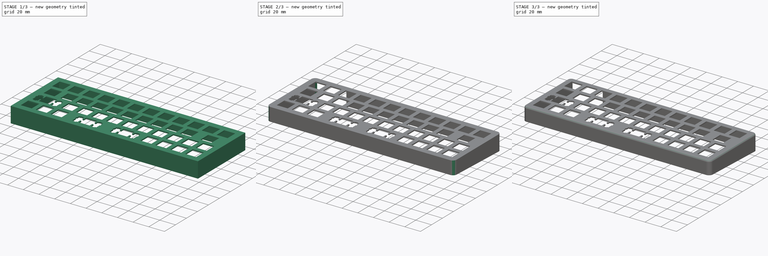
[diagram: build sequence overview — one tinted view per stage of 3, left to right]
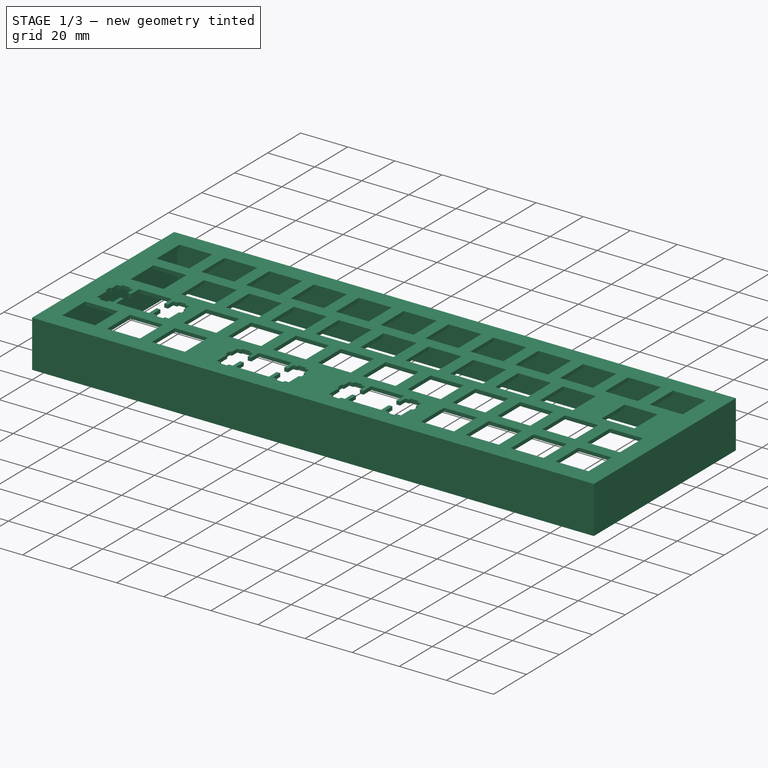
[diagram: stage 1 of 3 — iso view after this stage's code; geometry added in this stage tinted green]
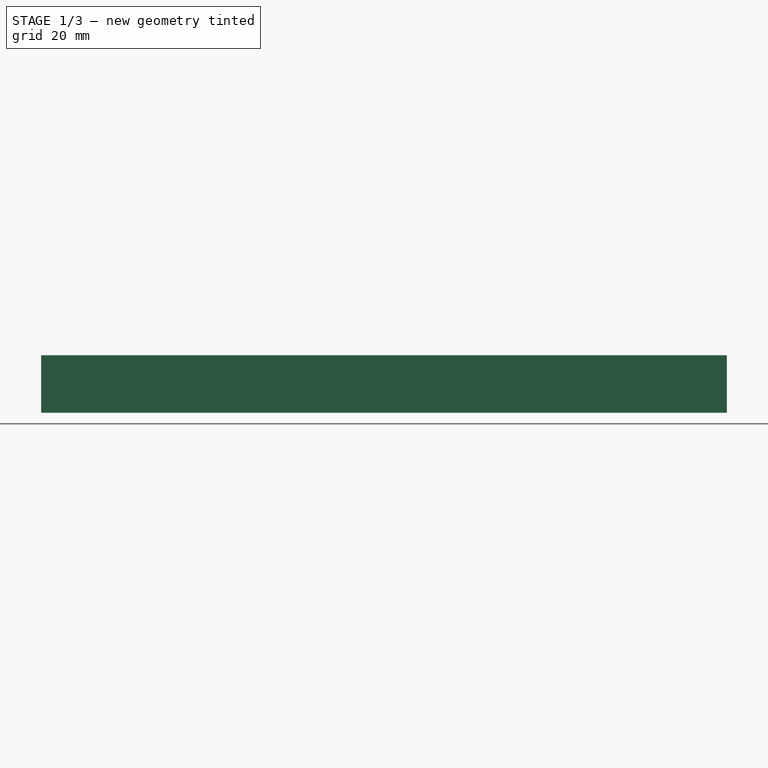
[diagram: stage 1 of 3 — front view after this stage's code; geometry added in this stage tinted green]
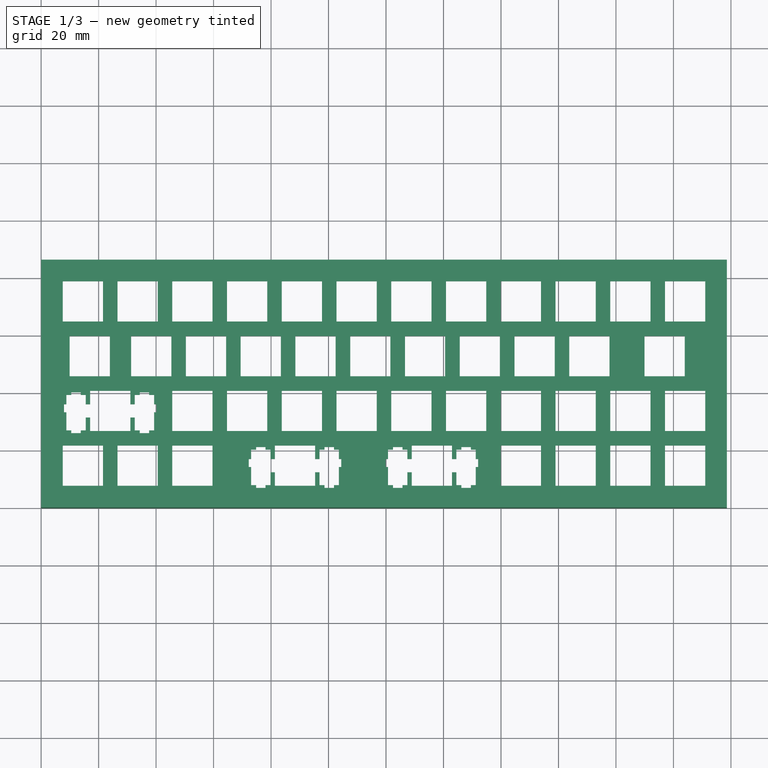
[diagram: stage 1 of 3 — top view after this stage's code; geometry added in this stage tinted green]
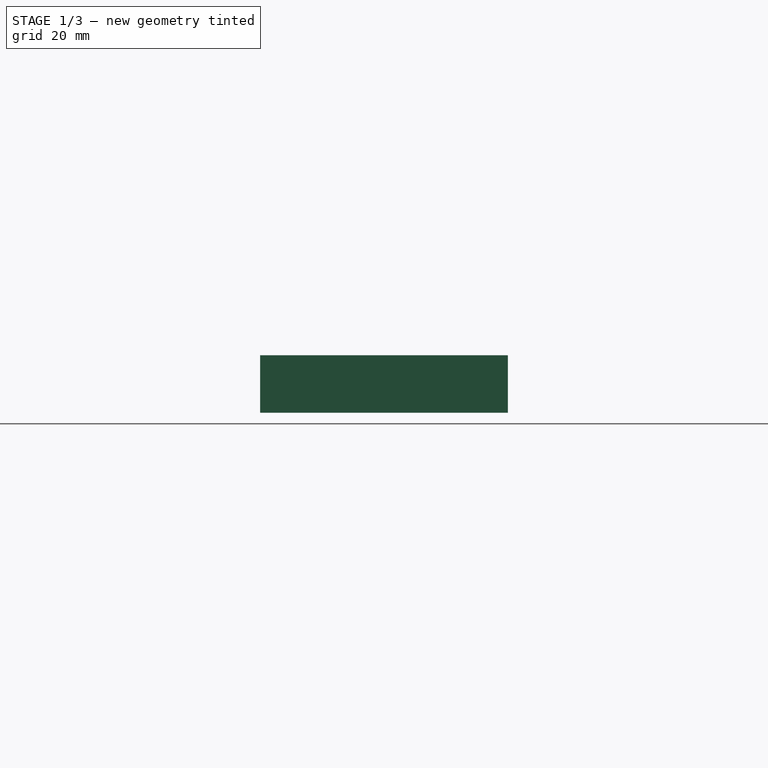
[diagram: stage 1 of 3 — right view after this stage's code; geometry added in this stage tinted green]
FCSTD DOCUMENT  (FreeCAD 0.20R)
Label: case
License: All rights reserved
LicenseURL: http://en.wikipedia.org/wiki/All_rights_reserved
objects: Sketcher::SketchObject×4, PartDesign::Pocket×3, PartDesign::Fillet×3, PartDesign::Pad×1, PartDesign::Body×1
note: 19 computed .brp shape members not serialized (recipe doc carries the construction recipe); baked Part::Feature solids carry a one-line shape summary decoded from their .brp

FEATURE [Sketcher::SketchObject] Sketch
  FullyConstrained = false
  Placement = pos=(0,0,0) rot=(0,0,1;3.14159rad)
  sketch-geometry (296):
    g0: LineSegment StartX=-81.342 StartY=-21.5254 StartZ=0 EndX=-81.342 EndY=-16.8249 EndZ=0
    g1: LineSegment StartX=-81.342 StartY=-16.8249 StartZ=0 EndX=-79.818 EndY=-16.8249 EndZ=0
    g2: LineSegment StartX=-79.818 StartY=-16.8249 StartZ=0 EndX=-79.818 EndY=-20.0551 EndZ=0
    g3: LineSegment StartX=-79.818 StartY=-20.0551 StartZ=0 EndX=-78.0925 EndY=-20.0551 EndZ=0
    g4: LineSegment StartX=-78.0925 StartY=-20.0551 StartZ=0 EndX=-78.0925 EndY=-20.977 EndZ=0
    g5: LineSegment StartX=-78.0925 StartY=-20.977 StartZ=0 EndX=-74.7919 EndY=-20.977 EndZ=0
    g6: LineSegment StartX=-74.7919 StartY=-20.977 StartZ=0 EndX=-74.7919 EndY=-20.0551 EndZ=0
    g7: LineSegment StartX=-74.7919 StartY=-20.0551 StartZ=0 EndX=-73.0669 EndY=-20.0551 EndZ=0
    g8: LineSegment StartX=-73.0669 StartY=-20.0551 StartZ=0 EndX=-73.0669 EndY=-16.8249 EndZ=0
    g9: LineSegment StartX=-73.0669 StartY=-16.8249 StartZ=0 EndX=-72.2428 EndY=-16.8249 EndZ=0
    g10: LineSegment StartX=-72.2428 StartY=-16.8249 StartZ=0 EndX=-72.2428 EndY=-14.0261 EndZ=0
    g11: LineSegment StartX=-72.2428 StartY=-14.0261 StartZ=0 EndX=-73.0669 EndY=-14.0261 EndZ=0
    g12: LineSegment StartX=-73.0669 StartY=-14.0261 StartZ=0 EndX=-73.0669 EndY=-7.75608 EndZ=0
    g13: LineSegment StartX=-73.0669 StartY=-7.75608 StartZ=0 EndX=-74.7919 EndY=-7.75608 EndZ=0
    g14: LineSegment StartX=-74.7919 StartY=-7.75608 StartZ=0 EndX=-74.7919 EndY=-6.77492 EndZ=0
    g15: LineSegment StartX=-74.7919 StartY=-6.77492 StartZ=0 EndX=-78.0925 EndY=-6.77492 EndZ=0
    g16: LineSegment StartX=-78.0925 StartY=-6.77492 StartZ=0 EndX=-78.0925 EndY=-7.75608 EndZ=0
    g17: LineSegment StartX=-78.0925 StartY=-7.75608 StartZ=0 EndX=-79.818 EndY=-7.75608 EndZ=0
    g18: LineSegment StartX=-79.818 StartY=-7.75608 StartZ=0 EndX=-79.818 EndY=-12.225 EndZ=0
    g19: LineSegment StartX=-79.818 StartY=-12.225 StartZ=0 EndX=-81.342 EndY=-12.225 EndZ=0
    g20: LineSegment StartX=-81.342 StartY=-12.225 StartZ=0 EndX=-81.342 EndY=-7.52595 EndZ=0
    g21: LineSegment StartX=-81.342 StartY=-7.52595 StartZ=0 EndX=-95.3427 EndY=-7.52595 EndZ=0
    g22: LineSegment StartX=-95.3427 StartY=-7.52595 StartZ=0 EndX=-95.3427 EndY=-12.225 EndZ=0
    g23: LineSegment StartX=-95.3427 StartY=-12.225 StartZ=0 EndX=-96.867 EndY=-12.225 EndZ=0
    g24: LineSegment StartX=-96.867 StartY=-12.225 StartZ=0 EndX=-96.867 EndY=-7.75608 EndZ=0
    g25: LineSegment StartX=-96.867 StartY=-7.75608 StartZ=0 EndX=-98.5921 EndY=-7.75608 EndZ=0
    g26: LineSegment StartX=-98.5921 StartY=-7.75608 StartZ=0 EndX=-98.5921 EndY=-6.77492 EndZ=0
    g27: LineSegment StartX=-98.5921 StartY=-6.77492 StartZ=0 EndX=-101.893 EndY=-6.77492 EndZ=0
    g28: LineSegment StartX=-101.893 StartY=-6.77492 StartZ=0 EndX=-101.893 EndY=-7.75608 EndZ=0
    g29: LineSegment StartX=-101.893 StartY=-7.75608 StartZ=0 EndX=-103.618 EndY=-7.75608 EndZ=0
    g30: LineSegment StartX=-103.618 StartY=-7.75608 StartZ=0 EndX=-103.618 EndY=-14.0261 EndZ=0
    g31: LineSegment StartX=-103.618 StartY=-14.0261 StartZ=0 EndX=-104.442 EndY=-14.0261 EndZ=0
    g32: LineSegment StartX=-104.442 StartY=-14.0261 StartZ=0 EndX=-104.442 EndY=-16.8249 EndZ=0
    g33: LineSegment StartX=-104.442 StartY=-16.8249 StartZ=0 EndX=-103.618 EndY=-16.8249 EndZ=0
    g34: LineSegment StartX=-103.618 StartY=-16.8249 StartZ=0 EndX=-103.618 EndY=-20.0551 EndZ=0
    g35: LineSegment StartX=-103.618 StartY=-20.0551 StartZ=0 EndX=-101.893 EndY=-20.0551 EndZ=0
    g36: LineSegment StartX=-101.893 StartY=-20.0551 StartZ=0 EndX=-101.893 EndY=-20.977 EndZ=0
    g37: LineSegment StartX=-101.893 StartY=-20.977 StartZ=0 EndX=-98.5921 EndY=-20.977 EndZ=0
    g38: LineSegment StartX=-98.5921 StartY=-20.977 StartZ=0 EndX=-98.5921 EndY=-20.0551 EndZ=0
    g39: LineSegment StartX=-98.5921 StartY=-20.0551 StartZ=0 EndX=-96.867 EndY=-20.0551 EndZ=0
    g40: LineSegment StartX=-96.867 StartY=-20.0551 StartZ=0 EndX=-96.867 EndY=-16.8249 EndZ=0
    g41: LineSegment StartX=-96.867 StartY=-16.8249 StartZ=0 EndX=-95.3427 EndY=-16.8249 EndZ=0
    g42: LineSegment StartX=-95.3427 StartY=-16.8249 StartZ=0 EndX=-95.3427 EndY=-21.5254 EndZ=0
    g43: LineSegment StartX=-95.3427 StartY=-21.5254 StartZ=0 EndX=-81.342 EndY=-21.5254 EndZ=0
    g44: LineSegment StartX=-128.967 StartY=-21.5254 StartZ=0 EndX=-128.967 EndY=-16.8249 EndZ=0
    g45: LineSegment StartX=-128.967 StartY=-16.8249 StartZ=0 EndX=-127.443 EndY=-16.8249 EndZ=0
    g46: LineSegment StartX=-127.443 StartY=-16.8249 StartZ=0 EndX=-127.443 EndY=-20.0551 EndZ=0
    g47: LineSegment StartX=-127.443 StartY=-20.0551 StartZ=0 EndX=-125.718 EndY=-20.0551 EndZ=0
    g48: LineSegment StartX=-125.718 StartY=-20.0551 StartZ=0 EndX=-125.718 EndY=-20.977 EndZ=0
    g49: LineSegment StartX=-125.718 StartY=-20.977 StartZ=0 EndX=-122.417 EndY=-20.977 EndZ=0
    g50: LineSegment StartX=-122.417 StartY=-20.977 StartZ=0 EndX=-122.417 EndY=-20.0551 EndZ=0
    g51: LineSegment StartX=-122.417 StartY=-20.0551 StartZ=0 EndX=-120.692 EndY=-20.0551 EndZ=0
    g52: LineSegment StartX=-120.692 StartY=-20.0551 StartZ=0 EndX=-120.692 EndY=-16.8249 EndZ=0
    g53: LineSegment StartX=-120.692 StartY=-16.8249 StartZ=0 EndX=-119.868 EndY=-16.8249 EndZ=0
    g54: LineSegment StartX=-119.868 StartY=-16.8249 StartZ=0 EndX=-119.868 EndY=-14.0261 EndZ=0
    g55: LineSegment StartX=-119.868 StartY=-14.0261 StartZ=0 EndX=-120.692 EndY=-14.0261 EndZ=0
    g56: LineSegment StartX=-120.692 StartY=-14.0261 StartZ=0 EndX=-120.692 EndY=-7.75608 EndZ=0
    g57: LineSegment StartX=-120.692 StartY=-7.75608 StartZ=0 EndX=-122.417 EndY=-7.75608 EndZ=0
    g58: LineSegment StartX=-122.417 StartY=-7.75608 StartZ=0 EndX=-122.417 EndY=-6.77492 EndZ=0
    g59: LineSegment StartX=-122.417 StartY=-6.77492 StartZ=0 EndX=-125.718 EndY=-6.77492 EndZ=0
    g60: LineSegment StartX=-125.718 StartY=-6.77492 StartZ=0 EndX=-125.718 EndY=-7.75608 EndZ=0
    g61: LineSegment StartX=-125.718 StartY=-7.75608 StartZ=0 EndX=-127.443 EndY=-7.75608 EndZ=0
    g62: LineSegment StartX=-127.443 StartY=-7.75608 StartZ=0 EndX=-127.443 EndY=-12.225 EndZ=0
    g63: LineSegment StartX=-127.443 StartY=-12.225 StartZ=0 EndX=-128.967 EndY=-12.225 EndZ=0
    g64: LineSegment StartX=-128.967 StartY=-12.225 StartZ=0 EndX=-128.967 EndY=-7.52595 EndZ=0
    g65: LineSegment StartX=-128.967 StartY=-7.52595 StartZ=0 EndX=-142.968 EndY=-7.52595 EndZ=0
    g66: LineSegment StartX=-142.968 StartY=-7.52595 StartZ=0 EndX=-142.968 EndY=-12.225 EndZ=0
    g67: LineSegment StartX=-142.968 StartY=-12.225 StartZ=0 EndX=-144.492 EndY=-12.225 EndZ=0
    g68: LineSegment StartX=-144.492 StartY=-12.225 StartZ=0 EndX=-144.492 EndY=-7.75608 EndZ=0
    g69: LineSegment StartX=-144.492 StartY=-7.75608 StartZ=0 EndX=-146.217 EndY=-7.75608 EndZ=0
    g70: LineSegment StartX=-146.217 StartY=-7.75608 StartZ=0 EndX=-146.217 EndY=-6.77492 EndZ=0
    g71: LineSegment StartX=-146.217 StartY=-6.77492 StartZ=0 EndX=-149.518 EndY=-6.77492 EndZ=0
    g72: LineSegment StartX=-149.518 StartY=-6.77492 StartZ=0 EndX=-149.518 EndY=-7.75608 EndZ=0
    g73: LineSegment StartX=-149.518 StartY=-7.75608 StartZ=0 EndX=-151.243 EndY=-7.75608 EndZ=0
    g74: LineSegment StartX=-151.243 StartY=-7.75608 StartZ=0 EndX=-151.243 EndY=-14.0261 EndZ=0
    g75: LineSegment StartX=-151.243 StartY=-14.0261 StartZ=0 EndX=-152.067 EndY=-14.0261 EndZ=0
    g76: LineSegment StartX=-152.067 StartY=-14.0261 StartZ=0 EndX=-152.067 EndY=-16.8249 EndZ=0
    g77: LineSegment StartX=-152.067 StartY=-16.8249 StartZ=0 EndX=-151.243 EndY=-16.8249 EndZ=0
    g78: LineSegment StartX=-151.243 StartY=-16.8249 StartZ=0 EndX=-151.243 EndY=-20.0551 EndZ=0
    g79: LineSegment StartX=-151.243 StartY=-20.0551 StartZ=0 EndX=-149.518 EndY=-20.0551 EndZ=0
    g80: LineSegment StartX=-149.518 StartY=-20.0551 StartZ=0 EndX=-149.518 EndY=-20.977 EndZ=0
    g81: LineSegment StartX=-149.518 StartY=-20.977 StartZ=0 EndX=-146.217 EndY=-20.977 EndZ=0
    g82: LineSegment StartX=-146.217 StartY=-20.977 StartZ=0 EndX=-146.217 EndY=-20.0551 EndZ=0
    g83: LineSegment StartX=-146.217 StartY=-20.0551 StartZ=0 EndX=-144.492 EndY=-20.0551 EndZ=0
    g84: LineSegment StartX=-144.492 StartY=-20.0551 StartZ=0 EndX=-144.492 EndY=-16.8249 EndZ=0
    g85: LineSegment StartX=-144.492 StartY=-16.8249 StartZ=0 EndX=-142.968 EndY=-16.8249 EndZ=0
    g86: LineSegment StartX=-142.968 StartY=-16.8249 StartZ=0 EndX=-142.968 EndY=-21.5254 EndZ=0
    g87: LineSegment StartX=-142.968 StartY=-21.5254 StartZ=0 EndX=-128.967 EndY=-21.5254 EndZ=0
    g88: LineSegment StartX=-7.52457 StartY=-21.5254 StartZ=0 EndX=-21.5241 EndY=-21.5254 EndZ=0
    g89: LineSegment StartX=-21.5241 StartY=-21.5254 StartZ=0 EndX=-21.5241 EndY=-7.52595 EndZ=0
    g90: LineSegment StartX=-21.5241 StartY=-7.52595 StartZ=0 EndX=-7.52457 EndY=-7.52595 EndZ=0
    g91: LineSegment StartX=-7.52457 StartY=-7.52595 StartZ=0 EndX=-7.52457 EndY=-21.5254 EndZ=0
    g92: LineSegment StartX=-26.5746 StartY=-21.5254 StartZ=0 EndX=-40.5739 EndY=-21.5254 EndZ=0
    g93: LineSegment StartX=-40.5739 StartY=-21.5254 StartZ=0 EndX=-40.5739 EndY=-7.52595 EndZ=0
    g94: LineSegment StartX=-40.5739 StartY=-7.52595 StartZ=0 EndX=-26.5746 EndY=-7.52595 EndZ=0
    g95: LineSegment StartX=-26.5746 StartY=-7.52595 StartZ=0 EndX=-26.5746 EndY=-21.5254 EndZ=0
    g96: LineSegment StartX=-45.6246 StartY=-21.5254 StartZ=0 EndX=-59.6239 EndY=-21.5254 EndZ=0
    g97: LineSegment StartX=-59.6239 StartY=-21.5254 StartZ=0 EndX=-59.6239 EndY=-7.52595 EndZ=0
    g98: LineSegment StartX=-59.6239 StartY=-7.52595 StartZ=0 EndX=-45.6246 EndY=-7.52595 EndZ=0
    g99: LineSegment StartX=-45.6246 StartY=-7.52595 StartZ=0 EndX=-45.6246 EndY=-21.5254 EndZ=0
    g100: LineSegment StartX=-159.925 StartY=-21.5254 StartZ=0 EndX=-173.924 EndY=-21.5254 EndZ=0
    g101: LineSegment StartX=-173.924 StartY=-21.5254 StartZ=0 EndX=-173.924 EndY=-7.52595 EndZ=0
    g102: LineSegment StartX=-173.924 StartY=-7.52595 StartZ=0 EndX=-159.925 EndY=-7.52595 EndZ=0
    g103: LineSegment StartX=-159.925 StartY=-7.52595 StartZ=0 EndX=-159.925 EndY=-21.5254 EndZ=0
    g104: LineSegment StartX=-178.975 StartY=-21.5254 StartZ=0 EndX=-192.974 EndY=-21.5254 EndZ=0
    g105: LineSegment StartX=-192.974 StartY=-21.5254 StartZ=0 EndX=-192.974 EndY=-7.52595 EndZ=0
    g106: LineSegment StartX=-192.974 StartY=-7.52595 StartZ=0 EndX=-178.975 EndY=-7.52595 EndZ=0
    g107: LineSegment StartX=-178.975 StartY=-7.52595 StartZ=0 EndX=-178.975 EndY=-21.5254 EndZ=0
    g108: LineSegment StartX=-198.025 StartY=-21.5254 StartZ=0 EndX=-212.024 EndY=-21.5254 EndZ=0
    g109: LineSegment StartX=-212.024 StartY=-21.5254 StartZ=0 EndX=-212.024 EndY=-7.52595 EndZ=0
    g110: LineSegment StartX=-212.024 StartY=-7.52595 StartZ=0 EndX=-198.025 EndY=-7.52595 EndZ=0
    g111: LineSegment StartX=-198.025 StartY=-7.52595 StartZ=0 EndX=-198.025 EndY=-21.5254 EndZ=0
    g112: LineSegment StartX=-217.075 StartY=-21.5254 StartZ=0 EndX=-231.074 EndY=-21.5254 EndZ=0
    g113: LineSegment StartX=-231.074 StartY=-21.5254 StartZ=0 EndX=-231.074 EndY=-7.52595 EndZ=0
    g114: LineSegment StartX=-231.074 StartY=-7.52595 StartZ=0 EndX=-217.075 EndY=-7.52595 EndZ=0
    g115: LineSegment StartX=-217.075 StartY=-7.52595 StartZ=0 EndX=-217.075 EndY=-21.5254 EndZ=0
    g116: LineSegment StartX=-17.0496 StartY=-40.5753 StartZ=0 EndX=-17.0496 EndY=-35.8749 EndZ=0
    g117: LineSegment StartX=-17.0496 StartY=-35.8749 StartZ=0 EndX=-15.5241 EndY=-35.8749 EndZ=0
    g118: LineSegment StartX=-15.5241 StartY=-35.8749 StartZ=0 EndX=-15.5241 EndY=-39.1051 EndZ=0
    g119: LineSegment StartX=-15.5241 StartY=-39.1051 StartZ=0 EndX=-13.7988 EndY=-39.1051 EndZ=0
    g120: LineSegment StartX=-13.7988 StartY=-39.1051 StartZ=0 EndX=-13.7988 EndY=-40.0257 EndZ=0
    g121: LineSegment StartX=-13.7988 StartY=-40.0257 StartZ=0 EndX=-10.4998 EndY=-40.0257 EndZ=0
    g122: LineSegment StartX=-10.4998 StartY=-40.0257 StartZ=0 EndX=-10.4998 EndY=-39.1051 EndZ=0
    g123: LineSegment StartX=-10.4998 StartY=-39.1051 StartZ=0 EndX=-8.77447 EndY=-39.1051 EndZ=0
    g124: LineSegment StartX=-8.77447 StartY=-39.1051 StartZ=0 EndX=-8.77447 EndY=-35.8749 EndZ=0
    g125: LineSegment StartX=-8.77447 StartY=-35.8749 StartZ=0 EndX=-7.94901 EndY=-35.8749 EndZ=0
    g126: LineSegment StartX=-7.94901 StartY=-35.8749 StartZ=0 EndX=-7.94901 EndY=-33.0761 EndZ=0
    g127: LineSegment StartX=-7.94901 StartY=-33.0761 StartZ=0 EndX=-8.77447 EndY=-33.0761 EndZ=0
    g128: LineSegment StartX=-8.77447 StartY=-33.0761 StartZ=0 EndX=-8.77447 EndY=-26.8061 EndZ=0
    g129: LineSegment StartX=-8.77447 StartY=-26.8061 StartZ=0 EndX=-10.4998 EndY=-26.8061 EndZ=0
    g130: LineSegment StartX=-10.4998 StartY=-26.8061 StartZ=0 EndX=-10.4998 EndY=-25.8249 EndZ=0
    g131: LineSegment StartX=-10.4998 StartY=-25.8249 StartZ=0 EndX=-13.7988 EndY=-25.8249 EndZ=0
    g132: LineSegment StartX=-13.7988 StartY=-25.8249 StartZ=0 EndX=-13.7988 EndY=-26.8061 EndZ=0
    g133: LineSegment StartX=-13.7988 StartY=-26.8061 StartZ=0 EndX=-15.5241 EndY=-26.8061 EndZ=0
    g134: LineSegment StartX=-15.5241 StartY=-26.8061 StartZ=0 EndX=-15.5241 EndY=-31.275 EndZ=0
    g135: LineSegment StartX=-15.5241 StartY=-31.275 StartZ=0 EndX=-17.0496 EndY=-31.275 EndZ=0
    g136: LineSegment StartX=-17.0496 StartY=-31.275 StartZ=0 EndX=-17.0496 EndY=-26.5759 EndZ=0
    g137: LineSegment StartX=-17.0496 StartY=-26.5759 StartZ=0 EndX=-31.049 EndY=-26.5759 EndZ=0
    g138: LineSegment StartX=-31.049 StartY=-26.5759 StartZ=0 EndX=-31.049 EndY=-31.275 EndZ=0
    g139: LineSegment StartX=-31.049 StartY=-31.275 StartZ=0 EndX=-32.5745 EndY=-31.275 EndZ=0
    g140: LineSegment StartX=-32.5745 StartY=-31.275 StartZ=0 EndX=-32.5745 EndY=-26.8061 EndZ=0
    g141: LineSegment StartX=-32.5745 StartY=-26.8061 StartZ=0 EndX=-34.2998 EndY=-26.8061 EndZ=0
    g142: LineSegment StartX=-34.2998 StartY=-26.8061 StartZ=0 EndX=-34.2998 EndY=-25.8249 EndZ=0
    g143: LineSegment StartX=-34.2998 StartY=-25.8249 StartZ=0 EndX=-37.5989 EndY=-25.8249 EndZ=0
    g144: LineSegment StartX=-37.5989 StartY=-25.8249 StartZ=0 EndX=-37.5989 EndY=-26.8061 EndZ=0
    g145: LineSegment StartX=-37.5989 StartY=-26.8061 StartZ=0 EndX=-39.3242 EndY=-26.8061 EndZ=0
    g146: LineSegment StartX=-39.3242 StartY=-26.8061 StartZ=0 EndX=-39.3242 EndY=-33.0761 EndZ=0
    g147: LineSegment StartX=-39.3242 StartY=-33.0761 StartZ=0 EndX=-40.1496 EndY=-33.0761 EndZ=0
    g148: LineSegment StartX=-40.1496 StartY=-33.0761 StartZ=0 EndX=-40.1496 EndY=-35.8749 EndZ=0
    g149: LineSegment StartX=-40.1496 StartY=-35.8749 StartZ=0 EndX=-39.3242 EndY=-35.8749 EndZ=0
    g150: LineSegment StartX=-39.3242 StartY=-35.8749 StartZ=0 EndX=-39.3242 EndY=-39.1051 EndZ=0
    g151: LineSegment StartX=-39.3242 StartY=-39.1051 StartZ=0 EndX=-37.5989 EndY=-39.1051 EndZ=0
    g152: LineSegment StartX=-37.5989 StartY=-39.1051 StartZ=0 EndX=-37.5989 EndY=-40.0257 EndZ=0
    g153: LineSegment StartX=-37.5989 StartY=-40.0257 StartZ=0 EndX=-34.2998 EndY=-40.0257 EndZ=0
    g154: LineSegment StartX=-34.2998 StartY=-40.0257 StartZ=0 EndX=-34.2998 EndY=-39.1051 EndZ=0
    g155: LineSegment StartX=-34.2998 StartY=-39.1051 StartZ=0 EndX=-32.5745 EndY=-39.1051 EndZ=0
    g156: LineSegment StartX=-32.5745 StartY=-39.1051 StartZ=0 EndX=-32.5745 EndY=-35.8749 EndZ=0
    g157: LineSegment StartX=-32.5745 StartY=-35.8749 StartZ=0 EndX=-31.049 EndY=-35.8749 EndZ=0
    g158: LineSegment StartX=-31.049 StartY=-35.8749 StartZ=0 EndX=-31.049 EndY=-40.5753 EndZ=0
    g159: LineSegment StartX=-31.049 StartY=-40.5753 StartZ=0 EndX=-17.0496 EndY=-40.5753 EndZ=0
    g160: LineSegment StartX=-45.6246 StartY=-40.5753 StartZ=0 EndX=-59.6239 EndY=-40.5753 EndZ=0
    g161: LineSegment StartX=-59.6239 StartY=-40.5753 StartZ=0 EndX=-59.6239 EndY=-26.5759 EndZ=0
    g162: LineSegment StartX=-59.6239 StartY=-26.5759 StartZ=0 EndX=-45.6246 EndY=-26.5759 EndZ=0
    g163: LineSegment StartX=-45.6246 StartY=-26.5759 StartZ=0 EndX=-45.6246 EndY=-40.5753 EndZ=0
    g164: LineSegment StartX=-64.6746 StartY=-40.5753 StartZ=0 EndX=-78.6739 EndY=-40.5753 EndZ=0
    g165: LineSegment StartX=-78.6739 StartY=-40.5753 StartZ=0 EndX=-78.6739 EndY=-26.5759 EndZ=0
    g166: LineSegment StartX=-78.6739 StartY=-26.5759 StartZ=0 EndX=-64.6746 EndY=-26.5759 EndZ=0
    g167: LineSegment StartX=-64.6746 StartY=-26.5759 StartZ=0 EndX=-64.6746 EndY=-40.5753 EndZ=0
    g168: LineSegment StartX=-83.7246 StartY=-40.5753 StartZ=0 EndX=-97.7239 EndY=-40.5753 EndZ=0
    g169: LineSegment StartX=-97.7239 StartY=-40.5753 StartZ=0 EndX=-97.7239 EndY=-26.5759 EndZ=0
    g170: LineSegment StartX=-97.7239 StartY=-26.5759 StartZ=0 EndX=-83.7246 EndY=-26.5759 EndZ=0
    g171: LineSegment StartX=-83.7246 StartY=-26.5759 StartZ=0 EndX=-83.7246 EndY=-40.5753 EndZ=0
    g172: LineSegment StartX=-102.773 StartY=-40.5753 StartZ=0 EndX=-116.774 EndY=-40.5753 EndZ=0
    g173: LineSegment StartX=-116.774 StartY=-40.5753 StartZ=0 EndX=-116.774 EndY=-26.5759 EndZ=0
    g174: LineSegment StartX=-116.774 StartY=-26.5759 StartZ=0 EndX=-102.773 EndY=-26.5759 EndZ=0
    g175: LineSegment StartX=-102.773 StartY=-26.5759 StartZ=0 EndX=-102.773 EndY=-40.5753 EndZ=0
    g176: LineSegment StartX=-121.823 StartY=-40.5753 StartZ=0 EndX=-135.824 EndY=-40.5753 EndZ=0
    g177: LineSegment StartX=-135.824 StartY=-40.5753 StartZ=0 EndX=-135.824 EndY=-26.5759 EndZ=0
    g178: LineSegment StartX=-135.824 StartY=-26.5759 StartZ=0 EndX=-121.823 EndY=-26.5759 EndZ=0
    g179: LineSegment StartX=-121.823 StartY=-26.5759 StartZ=0 EndX=-121.823 EndY=-40.5753 EndZ=0
    g180: LineSegment StartX=-140.875 StartY=-40.5753 StartZ=0 EndX=-154.874 EndY=-40.5753 EndZ=0
    g181: LineSegment StartX=-154.874 StartY=-40.5753 StartZ=0 EndX=-154.874 EndY=-26.5759 EndZ=0
    g182: LineSegment StartX=-154.874 StartY=-26.5759 StartZ=0 EndX=-140.875 EndY=-26.5759 EndZ=0
    g183: LineSegment StartX=-140.875 StartY=-26.5759 StartZ=0 EndX=-140.875 EndY=-40.5753 EndZ=0
    g184: LineSegment StartX=-159.925 StartY=-40.5753 StartZ=0 EndX=-173.924 EndY=-40.5753 EndZ=0
    g185: LineSegment StartX=-173.924 StartY=-40.5753 StartZ=0 EndX=-173.924 EndY=-26.5759 EndZ=0
    g186: LineSegment StartX=-173.924 StartY=-26.5759 StartZ=0 EndX=-159.925 EndY=-26.5759 EndZ=0
    g187: LineSegment StartX=-159.925 StartY=-26.5759 StartZ=0 EndX=-159.925 EndY=-40.5753 EndZ=0
    g188: LineSegment StartX=-178.975 StartY=-40.5753 StartZ=0 EndX=-192.974 EndY=-40.5753 EndZ=0
    g189: LineSegment StartX=-192.974 StartY=-40.5753 StartZ=0 EndX=-192.974 EndY=-26.5759 EndZ=0
    g190: LineSegment StartX=-192.974 StartY=-26.5759 StartZ=0 EndX=-178.975 EndY=-26.5759 EndZ=0
    g191: LineSegment StartX=-178.975 StartY=-26.5759 StartZ=0 EndX=-178.975 EndY=-40.5753 EndZ=0
    g192: LineSegment StartX=-198.025 StartY=-40.5753 StartZ=0 EndX=-212.024 EndY=-40.5753 EndZ=0
    g193: LineSegment StartX=-212.024 StartY=-40.5753 StartZ=0 EndX=-212.024 EndY=-26.5759 EndZ=0
    g194: LineSegment StartX=-212.024 StartY=-26.5759 StartZ=0 EndX=-198.025 EndY=-26.5759 EndZ=0
    g195: LineSegment StartX=-198.025 StartY=-26.5759 StartZ=0 EndX=-198.025 EndY=-40.5753 EndZ=0
    g196: LineSegment StartX=-217.075 StartY=-40.5753 StartZ=0 EndX=-231.074 EndY=-40.5753 EndZ=0
    g197: LineSegment StartX=-231.074 StartY=-40.5753 StartZ=0 EndX=-231.074 EndY=-26.5759 EndZ=0
    g198: LineSegment StartX=-231.074 StartY=-26.5759 StartZ=0 EndX=-217.075 EndY=-26.5759 EndZ=0
    g199: LineSegment StartX=-217.075 StartY=-26.5759 StartZ=0 EndX=-217.075 EndY=-40.5753 EndZ=0
    g200: LineSegment StartX=-9.90583 StartY=-59.6254 StartZ=0 EndX=-23.9053 EndY=-59.6254 EndZ=0
    g201: LineSegment StartX=-23.9053 StartY=-59.6254 StartZ=0 EndX=-23.9053 EndY=-45.6261 EndZ=0
    g202: LineSegment StartX=-23.9053 StartY=-45.6261 StartZ=0 EndX=-9.90583 EndY=-45.6261 EndZ=0
    g203: LineSegment StartX=-9.90583 StartY=-45.6261 StartZ=0 EndX=-9.90583 EndY=-59.6254 EndZ=0
    g204: LineSegment StartX=-31.3371 StartY=-59.6254 StartZ=0 EndX=-45.3364 EndY=-59.6254 EndZ=0
    g205: LineSegment StartX=-45.3364 StartY=-59.6254 StartZ=0 EndX=-45.3364 EndY=-45.6261 EndZ=0
    g206: LineSegment StartX=-45.3364 StartY=-45.6261 StartZ=0 EndX=-31.3371 EndY=-45.6261 EndZ=0
    g207: LineSegment StartX=-31.3371 StartY=-45.6261 StartZ=0 EndX=-31.3371 EndY=-59.6254 EndZ=0
    g208: LineSegment StartX=-50.3871 StartY=-59.6254 StartZ=0 EndX=-64.3864 EndY=-59.6254 EndZ=0
    g209: LineSegment StartX=-64.3864 StartY=-59.6254 StartZ=0 EndX=-64.3864 EndY=-45.6261 EndZ=0
    g210: LineSegment StartX=-64.3864 StartY=-45.6261 StartZ=0 EndX=-50.3871 EndY=-45.6261 EndZ=0
    g211: LineSegment StartX=-50.3871 StartY=-45.6261 StartZ=0 EndX=-50.3871 EndY=-59.6254 EndZ=0
    g212: LineSegment StartX=-69.4371 StartY=-59.6254 StartZ=0 EndX=-83.4364 EndY=-59.6254 EndZ=0
    g213: LineSegment StartX=-83.4364 StartY=-59.6254 StartZ=0 EndX=-83.4364 EndY=-45.6261 EndZ=0
    g214: LineSegment StartX=-83.4364 StartY=-45.6261 StartZ=0 EndX=-69.4371 EndY=-45.6261 EndZ=0
    g215: LineSegment StartX=-69.4371 StartY=-45.6261 StartZ=0 EndX=-69.4371 EndY=-59.6254 EndZ=0
    g216: LineSegment StartX=-88.4871 StartY=-59.6254 StartZ=0 EndX=-102.486 EndY=-59.6254 EndZ=0
    g217: LineSegment StartX=-102.486 StartY=-59.6254 StartZ=0 EndX=-102.486 EndY=-45.6261 EndZ=0
    g218: LineSegment StartX=-102.486 StartY=-45.6261 StartZ=0 EndX=-88.4871 EndY=-45.6261 EndZ=0
    g219: LineSegment StartX=-88.4871 StartY=-45.6261 StartZ=0 EndX=-88.4871 EndY=-59.6254 EndZ=0
    g220: LineSegment StartX=-107.537 StartY=-59.6254 StartZ=0 EndX=-121.537 EndY=-59.6254 EndZ=0
    g221: LineSegment StartX=-121.537 StartY=-59.6254 StartZ=0 EndX=-121.537 EndY=-45.6261 EndZ=0
    g222: LineSegment StartX=-121.537 StartY=-45.6261 StartZ=0 EndX=-107.537 EndY=-45.6261 EndZ=0
    g223: LineSegment StartX=-107.537 StartY=-45.6261 StartZ=0 EndX=-107.537 EndY=-59.6254 EndZ=0
    g224: LineSegment StartX=-126.587 StartY=-59.6254 StartZ=0 EndX=-140.587 EndY=-59.6254 EndZ=0
    g225: LineSegment StartX=-140.587 StartY=-59.6254 StartZ=0 EndX=-140.587 EndY=-45.6261 EndZ=0
    g226: LineSegment StartX=-140.587 StartY=-45.6261 StartZ=0 EndX=-126.587 EndY=-45.6261 EndZ=0
    g227: LineSegment StartX=-126.587 StartY=-45.6261 StartZ=0 EndX=-126.587 EndY=-59.6254 EndZ=0
    g228: LineSegment StartX=-145.637 StartY=-59.6254 StartZ=0 EndX=-159.637 EndY=-59.6254 EndZ=0
    g229: LineSegment StartX=-159.637 StartY=-59.6254 StartZ=0 EndX=-159.637 EndY=-45.6261 EndZ=0
    g230: LineSegment StartX=-159.637 StartY=-45.6261 StartZ=0 EndX=-145.637 EndY=-45.6261 EndZ=0
    g231: LineSegment StartX=-145.637 StartY=-45.6261 StartZ=0 EndX=-145.637 EndY=-59.6254 EndZ=0
    g232: LineSegment StartX=-164.687 StartY=-59.6254 StartZ=0 EndX=-178.687 EndY=-59.6254 EndZ=0
    g233: LineSegment StartX=-178.687 StartY=-59.6254 StartZ=0 EndX=-178.687 EndY=-45.6261 EndZ=0
    g234: LineSegment StartX=-178.687 StartY=-45.6261 StartZ=0 EndX=-164.687 EndY=-45.6261 EndZ=0
    g235: LineSegment StartX=-164.687 StartY=-45.6261 StartZ=0 EndX=-164.687 EndY=-59.6254 EndZ=0
    g236: LineSegment StartX=-183.737 StartY=-59.6254 StartZ=0 EndX=-197.737 EndY=-59.6254 EndZ=0
    g237: LineSegment StartX=-197.737 StartY=-59.6254 StartZ=0 EndX=-197.737 EndY=-45.6261 EndZ=0
    g238: LineSegment StartX=-197.737 StartY=-45.6261 StartZ=0 EndX=-183.737 EndY=-45.6261 EndZ=0
    g239: LineSegment StartX=-183.737 StartY=-45.6261 StartZ=0 EndX=-183.737 EndY=-59.6254 EndZ=0
    g240: LineSegment StartX=-209.931 StartY=-59.6254 StartZ=0 EndX=-223.93 EndY=-59.6254 EndZ=0
    g241: LineSegment StartX=-223.93 StartY=-59.6254 StartZ=0 EndX=-223.93 EndY=-45.6261 EndZ=0
    g242: LineSegment StartX=-223.93 StartY=-45.6261 StartZ=0 EndX=-209.931 EndY=-45.6261 EndZ=0
    g243: LineSegment StartX=-209.931 StartY=-45.6261 StartZ=0 EndX=-209.931 EndY=-59.6254 EndZ=0
    g244: LineSegment StartX=-7.52457 StartY=-78.6754 StartZ=0 EndX=-21.5241 EndY=-78.6754 EndZ=0
    g245: LineSegment StartX=-21.5241 StartY=-78.6754 StartZ=0 EndX=-21.5241 EndY=-64.6761 EndZ=0
    g246: LineSegment StartX=-21.5241 StartY=-64.6761 StartZ=0 EndX=-7.52457 EndY=-64.6761 EndZ=0
    g247: LineSegment StartX=-7.52457 StartY=-64.6761 StartZ=0 EndX=-7.52457 EndY=-78.6754 EndZ=0
    g248: LineSegment StartX=-26.5746 StartY=-78.6754 StartZ=0 EndX=-40.5739 EndY=-78.6754 EndZ=0
    g249: LineSegment StartX=-40.5739 StartY=-78.6754 StartZ=0 EndX=-40.5739 EndY=-64.6761 EndZ=0
    g250: LineSegment StartX=-40.5739 StartY=-64.6761 StartZ=0 EndX=-26.5746 EndY=-64.6761 EndZ=0
    g251: LineSegment StartX=-26.5746 StartY=-64.6761 StartZ=0 EndX=-26.5746 EndY=-78.6754 EndZ=0
    g252: LineSegment StartX=-45.6246 StartY=-78.6754 StartZ=0 EndX=-59.6239 EndY=-78.6754 EndZ=0
    g253: LineSegment StartX=-59.6239 StartY=-78.6754 StartZ=0 EndX=-59.6239 EndY=-64.6761 EndZ=0
    g254: LineSegment StartX=-59.6239 StartY=-64.6761 StartZ=0 EndX=-45.6246 EndY=-64.6761 EndZ=0
    g255: LineSegment StartX=-45.6246 StartY=-64.6761 StartZ=0 EndX=-45.6246 EndY=-78.6754 EndZ=0
    g256: LineSegment StartX=-64.6746 StartY=-78.6754 StartZ=0 EndX=-78.6739 EndY=-78.6754 EndZ=0
    g257: LineSegment StartX=-78.6739 StartY=-78.6754 StartZ=0 EndX=-78.6739 EndY=-64.6761 EndZ=0
    g258: LineSegment StartX=-78.6739 StartY=-64.6761 StartZ=0 EndX=-64.6746 EndY=-64.6761 EndZ=0
    g259: LineSegment StartX=-64.6746 StartY=-64.6761 StartZ=0 EndX=-64.6746 EndY=-78.6754 EndZ=0
    g260: LineSegment StartX=-83.7246 StartY=-78.6754 StartZ=0 EndX=-97.7239 EndY=-78.6754 EndZ=0
    g261: LineSegment StartX=-97.7239 StartY=-78.6754 StartZ=0 EndX=-97.7239 EndY=-64.6761 EndZ=0
    g262: LineSegment StartX=-97.7239 StartY=-64.6761 StartZ=0 EndX=-83.7246 EndY=-64.6761 EndZ=0
    g263: LineSegment StartX=-83.7246 StartY=-64.6761 StartZ=0 EndX=-83.7246 EndY=-78.6754 EndZ=0
    g264: LineSegment StartX=-102.773 StartY=-78.6754 StartZ=0 EndX=-116.774 EndY=-78.6754 EndZ=0
    g265: LineSegment StartX=-116.774 StartY=-78.6754 StartZ=0 EndX=-116.774 EndY=-64.6761 EndZ=0
    g266: LineSegment StartX=-116.774 StartY=-64.6761 StartZ=0 EndX=-102.773 EndY=-64.6761 EndZ=0
    g267: LineSegment StartX=-102.773 StartY=-64.6761 StartZ=0 EndX=-102.773 EndY=-78.6754 EndZ=0
    g268: LineSegment StartX=-121.823 StartY=-78.6754 StartZ=0 EndX=-135.824 EndY=-78.6754 EndZ=0
    g269: LineSegment StartX=-135.824 StartY=-78.6754 StartZ=0 EndX=-135.824 EndY=-64.6761 EndZ=0
    g270: LineSegment StartX=-135.824 StartY=-64.6761 StartZ=0 EndX=-121.823 EndY=-64.6761 EndZ=0
    g271: LineSegment StartX=-121.823 StartY=-64.6761 StartZ=0 EndX=-121.823 EndY=-78.6754 EndZ=0
    g272: LineSegment StartX=-140.875 StartY=-78.6754 StartZ=0 EndX=-154.874 EndY=-78.6754 EndZ=0
    g273: LineSegment StartX=-154.874 StartY=-78.6754 StartZ=0 EndX=-154.874 EndY=-64.6761 EndZ=0
    g274: LineSegment StartX=-154.874 StartY=-64.6761 StartZ=0 EndX=-140.875 EndY=-64.6761 EndZ=0
    g275: LineSegment StartX=-140.875 StartY=-64.6761 StartZ=0 EndX=-140.875 EndY=-78.6754 EndZ=0
    g276: LineSegment StartX=-159.925 StartY=-78.6754 StartZ=0 EndX=-173.924 EndY=-78.6754 EndZ=0
    g277: LineSegment StartX=-173.924 StartY=-78.6754 StartZ=0 EndX=-173.924 EndY=-64.6761 EndZ=0
    g278: LineSegment StartX=-173.924 StartY=-64.6761 StartZ=0 EndX=-159.925 EndY=-64.6761 EndZ=0
    g279: LineSegment StartX=-159.925 StartY=-64.6761 StartZ=0 EndX=-159.925 EndY=-78.6754 EndZ=0
    g280: LineSegment StartX=-178.975 StartY=-78.6754 StartZ=0 EndX=-192.974 EndY=-78.6754 EndZ=0
    g281: LineSegment StartX=-192.974 StartY=-78.6754 StartZ=0 EndX=-192.974 EndY=-64.6761 EndZ=0
    g282: LineSegment StartX=-192.974 StartY=-64.6761 StartZ=0 EndX=-178.975 EndY=-64.6761 EndZ=0
    g283: LineSegment StartX=-178.975 StartY=-64.6761 StartZ=0 EndX=-178.975 EndY=-78.6754 EndZ=0
    g284: LineSegment StartX=-198.025 StartY=-78.6754 StartZ=0 EndX=-212.024 EndY=-78.6754 EndZ=0
    g285: LineSegment StartX=-212.024 StartY=-78.6754 StartZ=0 EndX=-212.024 EndY=-64.6761 EndZ=0
    g286: LineSegment StartX=-212.024 StartY=-64.6761 StartZ=0 EndX=-198.025 EndY=-64.6761 EndZ=0
    g287: LineSegment StartX=-198.025 StartY=-64.6761 StartZ=0 EndX=-198.025 EndY=-78.6754 EndZ=0
    g288: LineSegment StartX=-217.075 StartY=-78.6754 StartZ=0 EndX=-231.074 EndY=-78.6754 EndZ=0
    g289: LineSegment StartX=-231.074 StartY=-78.6754 StartZ=0 EndX=-231.074 EndY=-64.6761 EndZ=0
    g290: LineSegment StartX=-231.074 StartY=-64.6761 StartZ=0 EndX=-217.075 EndY=-64.6761 EndZ=0
    g291: LineSegment StartX=-217.075 StartY=-64.6761 StartZ=0 EndX=-217.075 EndY=-78.6754 EndZ=0
    g292: LineSegment StartX=-238.6 StartY=-86.1998 StartZ=0 EndX=-238.6 EndY=2.84e-14 EndZ=0
    g293: LineSegment StartX=-1.06e-14 StartY=-86.1998 StartZ=0 EndX=-238.6 EndY=-86.1998 EndZ=0
    g294: LineSegment StartX=0 StartY=0 StartZ=0 EndX=-1.06e-14 EndY=-86.1998 EndZ=0
    g295: LineSegment StartX=-238.6 StartY=2.84e-14 StartZ=0 EndX=0 EndY=0 EndZ=0
  constraints (296):
    c: Coincident(g292,g293)
    c: Coincident(g292,g295)
    c: Coincident(g288,g289)
    c: Coincident(g289,g290)
    c: Coincident(g196,g197)
    c: Coincident(g197,g198)
    c: Coincident(g112,g113)
    c: Coincident(g113,g114)
    c: Coincident(g240,g241)
    c: Coincident(g241,g242)
    c: Coincident(g288,g291)
    c: Coincident(g290,g291)
    c: Coincident(g196,g199)
    c: Coincident(g198,g199)
    c: Coincident(g112,g115)
    c: Coincident(g114,g115)
    c: Coincident(g284,g285)
    c: Coincident(g285,g286)
    c: Coincident(g192,g193)
    c: Coincident(g193,g194)
    c: Coincident(g108,g109)
    c: Coincident(g109,g110)
    c: Coincident(g240,g243)
    c: Coincident(g242,g243)
    c: Coincident(g284,g287)
    c: Coincident(g286,g287)
    c: Coincident(g192,g195)
    c: Coincident(g194,g195)
    c: Coincident(g108,g111)
    c: Coincident(g110,g111)
    c: Coincident(g236,g237)
    c: Coincident(g237,g238)
    c: Coincident(g280,g281)
    c: Coincident(g281,g282)
    c: Coincident(g188,g189)
    c: Coincident(g189,g190)
    c: Coincident(g104,g105)
    c: Coincident(g105,g106)
    c: Coincident(g236,g239)
    c: Coincident(g238,g239)
    c: Coincident(g280,g283)
    c: Coincident(g282,g283)
    c: Coincident(g188,g191)
    c: Coincident(g190,g191)
    c: Coincident(g104,g107)
    c: Coincident(g106,g107)
    c: Coincident(g232,g233)
    c: Coincident(g233,g234)
    c: Coincident(g276,g277)
    c: Coincident(g277,g278)
    c: Coincident(g184,g185)
    c: Coincident(g185,g186)
    c: Coincident(g100,g101)
    c: Coincident(g101,g102)
    c: Coincident(g232,g235)
    c: Coincident(g234,g235)
    c: Coincident(g276,g279)
    c: Coincident(g278,g279)
    c: Coincident(g184,g187)
    c: Coincident(g186,g187)
    c: Coincident(g100,g103)
    c: Coincident(g102,g103)
    c: Coincident(g228,g229)
    c: Coincident(g229,g230)
    c: Coincident(g272,g273)
    c: Coincident(g273,g274)
    c: Coincident(g180,g181)
    c: Coincident(g181,g182)
    c: Coincident(g76,g77)
    c: Coincident(g75,g76)
    c: Coincident(g78,g79)
    c: Coincident(g77,g78)
    c: Coincident(g74,g75)
    c: Coincident(g73,g74)
    c: Coincident(g80,g81)
    c: Coincident(g79,g80)
    c: Coincident(g72,g73)
    c: Coincident(g71,g72)
    c: Coincident(g81,g82)
    c: Coincident(g82,g83)
    c: Coincident(g69,g70)
    c: Coincident(g70,g71)
    c: Coincident(g228,g231)
    c: Coincident(g230,g231)
    c: Coincident(g83,g84)
    c: Coincident(g84,g85)
    c: Coincident(g67,g68)
    c: Coincident(g68,g69)
    c: Coincident(g86,g87)
    c: Coincident(g85,g86)
    c: Coincident(g66,g67)
    c: Coincident(g65,g66)
    c: Coincident(g272,g275)
    c: Coincident(g274,g275)
    c: Coincident(g180,g183)
    c: Coincident(g182,g183)
    c: Coincident(g224,g225)
    c: Coincident(g225,g226)
    c: Coincident(g268,g269)
    c: Coincident(g269,g270)
    c: Coincident(g176,g177)
    c: Coincident(g177,g178)
    c: Coincident(g44,g87)
    c: Coincident(g44,g45)
    c: Coincident(g63,g64)
    c: Coincident(g64,g65)
    c: Coincident(g46,g47)
    c: Coincident(g45,g46)
    c: Coincident(g62,g63)
    c: Coincident(g61,g62)
    c: Coincident(g224,g227)
    c: Coincident(g226,g227)
    c: Coincident(g48,g49)
    c: Coincident(g47,g48)
    c: Coincident(g60,g61)
    c: Coincident(g59,g60)
    c: Coincident(g49,g50)
    c: Coincident(g50,g51)
    c: Coincident(g57,g58)
    c: Coincident(g58,g59)
    c: Coincident(g268,g271)
    c: Coincident(g270,g271)
    c: Coincident(g176,g179)
    c: Coincident(g178,g179)
    c: Coincident(g220,g221)
    c: Coincident(g221,g222)
    c: Coincident(g51,g52)
    c: Coincident(g52,g53)
    c: Coincident(g55,g56)
    c: Coincident(g56,g57)
    c: Coincident(g53,g54)
    c: Coincident(g54,g55)
    c: Coincident(g264,g265)
    c: Coincident(g265,g266)
    c: Coincident(g172,g173)
    c: Coincident(g173,g174)
    c: Coincident(g220,g223)
    c: Coincident(g222,g223)
    c: Coincident(g32,g33)
    c: Coincident(g31,g32)
    c: Coincident(g34,g35)
    c: Coincident(g33,g34)
    c: Coincident(g30,g31)
    c: Coincident(g29,g30)
    c: Coincident(g264,g267)
    c: Coincident(g266,g267)
    c: Coincident(g172,g175)
    c: Coincident(g174,g175)
    c: Coincident(g216,g217)
    c: Coincident(g217,g218)
    c: Coincident(g36,g37)
    c: Coincident(g35,g36)
    c: Coincident(g28,g29)
    c: Coincident(g27,g28)
    c: Coincident(g37,g38)
    c: Coincident(g38,g39)
    c: Coincident(g25,g26)
    c: Coincident(g26,g27)
    c: Coincident(g260,g261)
    c: Coincident(g261,g262)
    c: Coincident(g168,g169)
    c: Coincident(g169,g170)
    c: Coincident(g39,g40)
    c: Coincident(g40,g41)
    c: Coincident(g23,g24)
    c: Coincident(g24,g25)
    c: Coincident(g42,g43)
    c: Coincident(g41,g42)
    c: Coincident(g22,g23)
    c: Coincident(g21,g22)
    c: Coincident(g216,g219)
    c: Coincident(g218,g219)
    c: Coincident(g260,g263)
    c: Coincident(g262,g263)
    c: Coincident(g168,g171)
    c: Coincident(g170,g171)
    c: Coincident(g212,g213)
    c: Coincident(g213,g214)
    c: Coincident(g0,g43)
    c: Coincident(g0,g1)
    c: Coincident(g19,g20)
    c: Coincident(g20,g21)
    c: Coincident(g2,g3)
    c: Coincident(g1,g2)
    c: Coincident(g18,g19)
    c: Coincident(g17,g18)
    c: Coincident(g256,g257)
    c: Coincident(g257,g258)
    c: Coincident(g164,g165)
    c: Coincident(g165,g166)
    c: Coincident(g4,g5)
    c: Coincident(g3,g4)
    c: Coincident(g16,g17)
    c: Coincident(g15,g16)
    c: Coincident(g5,g6)
    c: Coincident(g6,g7)
    c: Coincident(g13,g14)
    c: Coincident(g14,g15)
    c: Coincident(g7,g8)
    c: Coincident(g8,g9)
    c: Coincident(g11,g12)
    c: Coincident(g12,g13)
    c: Coincident(g9,g10)
    c: Coincident(g10,g11)
    c: Coincident(g212,g215)
    c: Coincident(g214,g215)
    c: Coincident(g256,g259)
    c: Coincident(g258,g259)
    c: Coincident(g164,g167)
    c: Coincident(g166,g167)
    c: Coincident(g208,g209)
    c: Coincident(g209,g210)
    c: Coincident(g252,g253)
    c: Coincident(g253,g254)
    c: Coincident(g160,g161)
    c: Coincident(g161,g162)
    c: Coincident(g96,g97)
    c: Coincident(g97,g98)
    c: Coincident(g208,g211)
    c: Coincident(g210,g211)
    c: Coincident(g252,g255)
    c: Coincident(g254,g255)
    c: Coincident(g160,g163)
    c: Coincident(g162,g163)
    c: Coincident(g96,g99)
    c: Coincident(g98,g99)
    c: Coincident(g204,g205)
    c: Coincident(g205,g206)
    c: Coincident(g248,g249)
    c: Coincident(g249,g250)
    c: Coincident(g92,g93)
    c: Coincident(g93,g94)
    c: Coincident(g148,g149)
    c: Coincident(g147,g148)
    c: Coincident(g150,g151)
    c: Coincident(g149,g150)
    c: Coincident(g146,g147)
    c: Coincident(g145,g146)
    c: Coincident(g152,g153)
    c: Coincident(g151,g152)
    c: Coincident(g144,g145)
    c: Coincident(g143,g144)
    c: Coincident(g153,g154)
    c: Coincident(g154,g155)
    c: Coincident(g141,g142)
    c: Coincident(g142,g143)
    c: Coincident(g155,g156)
    c: Coincident(g156,g157)
    c: Coincident(g139,g140)
    c: Coincident(g140,g141)
    c: Coincident(g204,g207)
    c: Coincident(g206,g207)
    c: Coincident(g158,g159)
    c: Coincident(g157,g158)
    c: Coincident(g138,g139)
    c: Coincident(g137,g138)
    c: Coincident(g248,g251)
    c: Coincident(g250,g251)
    c: Coincident(g92,g95)
    c: Coincident(g94,g95)
    c: Coincident(g200,g201)
    c: Coincident(g201,g202)
    c: Coincident(g244,g245)
    c: Coincident(g245,g246)
    c: Coincident(g88,g89)
    c: Coincident(g89,g90)
    c: Coincident(g116,g159)
    c: Coincident(g116,g117)
    c: Coincident(g135,g136)
    c: Coincident(g136,g137)
    c: Coincident(g118,g119)
    c: Coincident(g117,g118)
    c: Coincident(g134,g135)
    c: Coincident(g133,g134)
    c: Coincident(g120,g121)
    c: Coincident(g119,g120)
    c: Coincident(g132,g133)
    c: Coincident(g131,g132)
    c: Coincident(g121,g122)
    c: Coincident(g122,g123)
    c: Coincident(g129,g130)
    c: Coincident(g130,g131)
    c: Coincident(g200,g203)
    c: Coincident(g202,g203)
    c: Coincident(g123,g124)
    c: Coincident(g124,g125)
    c: Coincident(g127,g128)
    c: Coincident(g128,g129)
    c: Coincident(g125,g126)
    c: Coincident(g126,g127)
    c: Coincident(g244,g247)
    c: Coincident(g246,g247)
    c: Coincident(g88,g91)
    c: Coincident(g90,g91)
    c: Coincident(g293,g294)
    c: Coincident(g294,g295)
FEATURE [PartDesign::Pad] Pad
  Direction = (0,0,1)
  Length = 20
  Length2 = 10
  Placement = pos=(0,0,0) rot=(0,0,1;3.14159rad)
  Profile = -> Sketch
  ReferenceAxis = -> Sketch [N_Axis]
  Type = 0
FEATURE [Sketcher::SketchObject] Sketch001
  ExternalGeometry = -> [Pad]
  FullyConstrained = true
  MapMode = 5
  Placement = pos=(0,0,0) rot=(0,1,0;3.14159rad)
  Support = -> [Pad]
  sketch-geometry (4):
    g0: LineSegment StartX=-234.6 StartY=82.1998 StartZ=0 EndX=-4 EndY=82.1998 EndZ=0
    g1: LineSegment StartX=-4 StartY=82.1998 StartZ=0 EndX=-4 EndY=4 EndZ=0
    g2: LineSegment StartX=-4 StartY=4 StartZ=0 EndX=-234.6 EndY=4 EndZ=0
    g3: LineSegment StartX=-234.6 StartY=4 StartZ=0 EndX=-234.6 EndY=82.1998 EndZ=0
  constraints (12):
    c: Coincident(g0,g1)
    c: Coincident(g1,g2)
    c: Coincident(g2,g3)
    c: Coincident(g3,g0)
    c: Horizontal(g0)
    c: Horizontal(g2)
    c: Vertical(g1)
    c: Vertical(g3)
    c: DistanceX(g-4,g2) = 4
    c: DistanceY(g-4,g2) = 4
    c: DistanceX(g0,g-3) = 4
    c: DistanceY(g0,g-3) = 4
FEATURE [PartDesign::Pocket] Pocket
  BaseFeature = -> Pad
  Direction = (0,0,1)
  Length = 0
  Length2 = 5
  Offset = -1.5
  Placement = pos=(0,0,0) rot=(0,0,1;3.14159rad)
  Profile = -> Sketch001
  ReferenceAxis = -> Sketch001 [N_Axis]
  Type = 3
  UpToFace = -> Pad [Face298]
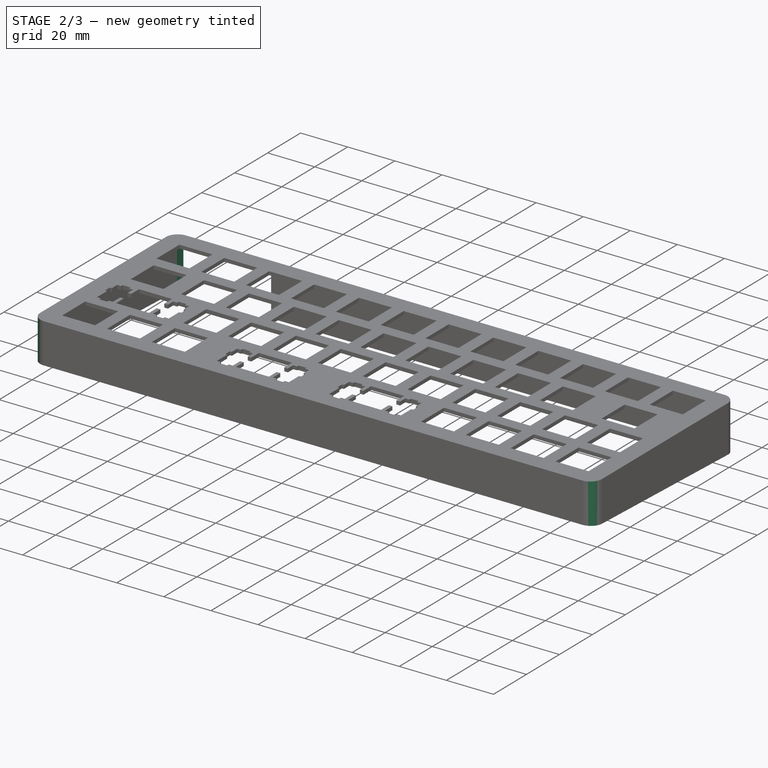
[diagram: stage 2 of 3 — iso view after this stage's code; geometry added in this stage tinted green]
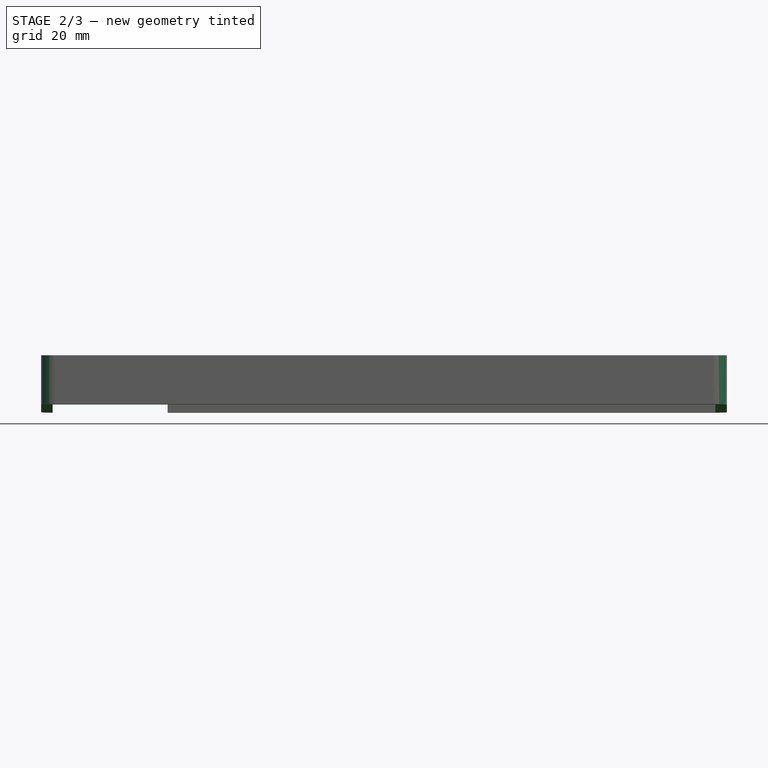
[diagram: stage 2 of 3 — front view after this stage's code; geometry added in this stage tinted green]
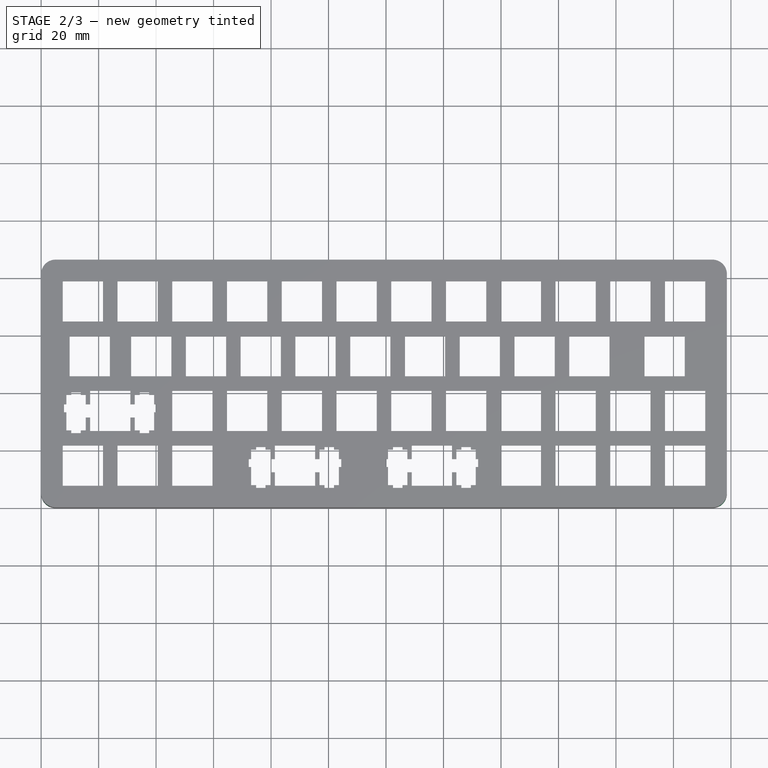
[diagram: stage 2 of 3 — top view after this stage's code; geometry added in this stage tinted green]
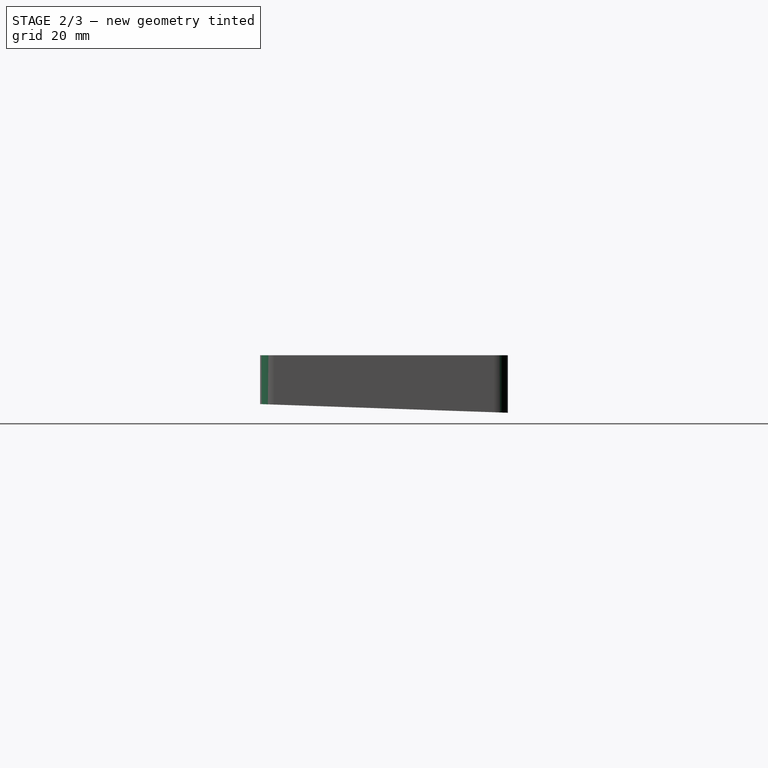
[diagram: stage 2 of 3 — right view after this stage's code; geometry added in this stage tinted green]
FEATURE [Sketcher::SketchObject] Sketch002
  ExternalGeometry = -> [Pocket]
  FullyConstrained = true
  MapMode = 5
  Placement = pos=(238.6,-2.92e-14,0) rot=(0.57735,0.57735,0.57735;2.0944rad)
  Support = -> [Pocket]
  sketch-geometry (3):
    g0: LineSegment StartX=86.1998 StartY=-9.6e-15 StartZ=0 EndX=-2.84e-14 EndY=3.01016 EndZ=0
    g1: LineSegment StartX=-2.84e-14 StartY=3.01016 StartZ=0 EndX=-2.84e-14 EndY=0 EndZ=0
    g2: LineSegment StartX=-2.84e-14 StartY=0 StartZ=0 EndX=86.1998 EndY=-9.6e-15 EndZ=0
  constraints (7):
    c: Coincident(g-4,g0)
    c: PointOnObject(g0,g-3)
    c: Coincident(g0,g1)
    c: Coincident(g1,g-3)
    c: Coincident(g1,g2)
    c: Coincident(g2,g0)
    c: Angle(g0,g2) = 0.0349066
FEATURE [PartDesign::Pocket] Pocket001
  BaseFeature = -> Pocket
  Direction = (-1,1e-16,1e-16)
  Length = 5
  Length2 = 5
  Placement = pos=(0,0,0) rot=(0,0,1;3.14159rad)
  Profile = -> Sketch002
  ReferenceAxis = -> Sketch002 [N_Axis]
  Type = 1
FEATURE [Sketcher::SketchObject] Sketch003
  ExternalGeometry = -> [Pocket001]
  FullyConstrained = true
  MapMode = 5
  Placement = pos=(3e-16,0.104989,3.0065) rot=(0,0.999848,-0.017452;3.14159rad)
  Support = -> [Pocket001]
  sketch-geometry (4):
    g0: LineSegment StartX=-4 StartY=81.5041 StartZ=0 EndX=-44 EndY=81.5041 EndZ=0
    g1: LineSegment StartX=-44 StartY=81.5041 StartZ=0 EndX=-44 EndY=86.1473 EndZ=0
    g2: LineSegment StartX=-44 StartY=86.1473 StartZ=0 EndX=-4 EndY=86.1473 EndZ=0
    g3: LineSegment StartX=-4 StartY=86.1473 StartZ=0 EndX=-4 EndY=81.5041 EndZ=0
  constraints (11):
    c: Coincident(g0,g1)
    c: Coincident(g1,g2)
    c: Coincident(g2,g3)
    c: Coincident(g3,g0)
    c: Horizontal(g0)
    c: Horizontal(g2)
    c: Vertical(g1)
    c: Vertical(g3)
    c: Coincident(g0,g-4)
    c: PointOnObject(g1,g-3)
    c: DistanceX(g0,g0) = 40
FEATURE [PartDesign::Pocket] Pocket002
  BaseFeature = -> Pocket001
  Direction = (1e-16,0.0348995,0.999391)
  Length = 0
  Length2 = 5
  Offset = -2
  Placement = pos=(0,0,0) rot=(0,0,1;3.14159rad)
  Profile = -> Sketch003
  ReferenceAxis = -> Sketch003 [N_Axis]
  Type = 3
  UpToFace = -> Pocket001 [Face303]
FEATURE [PartDesign::Fillet] Fillet
  Base = -> Pocket002 [Edge2,Edge4,Edge315,Edge16]
  BaseFeature = -> Pocket002
  Placement = pos=(0,0,0) rot=(0,0,1;3.14159rad)
  Radius = 5
  SupportTransform = false
  UseAllEdges = false
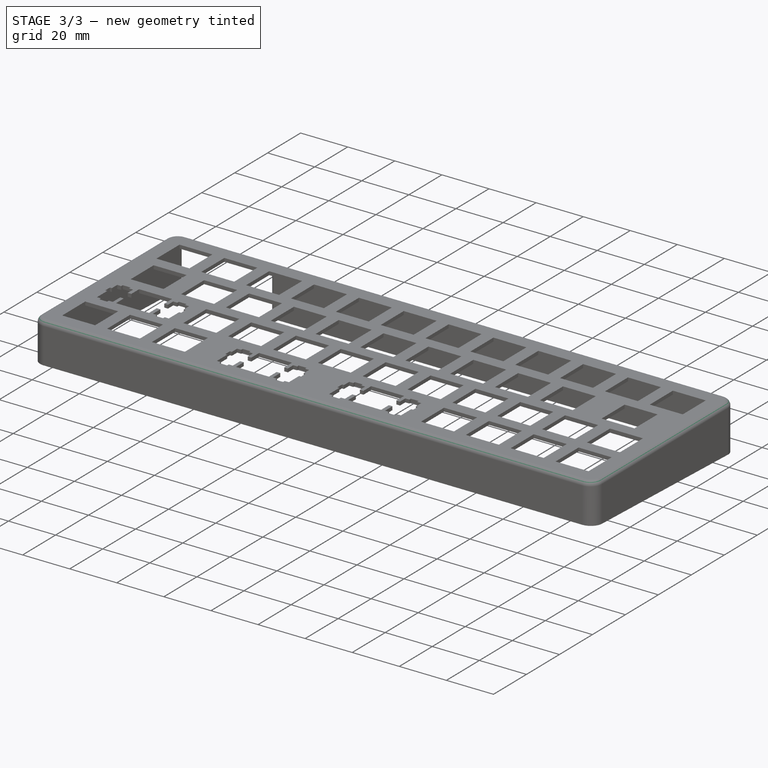
[diagram: stage 3 of 3 — iso view after this stage's code; geometry added in this stage tinted green]
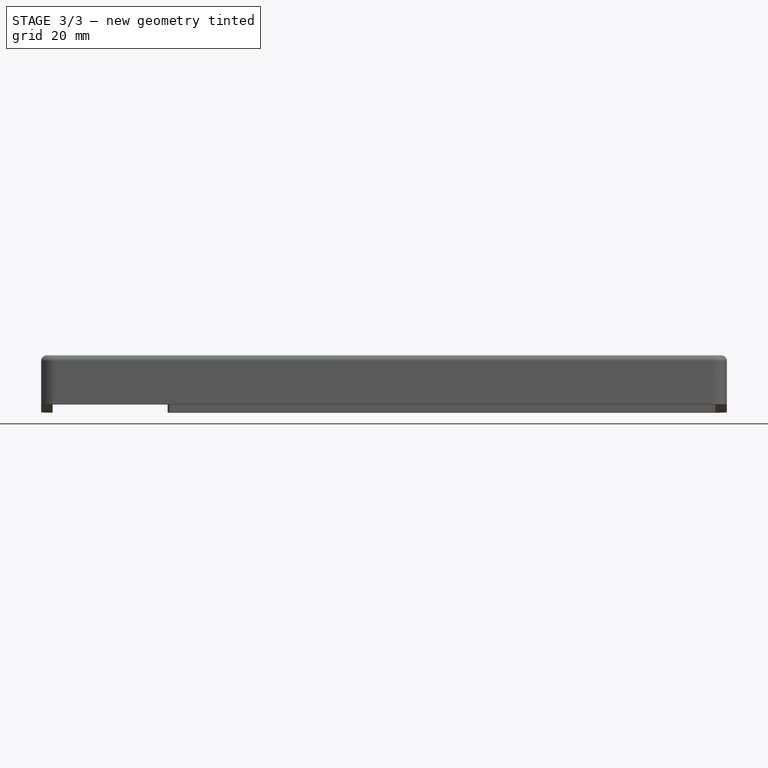
[diagram: stage 3 of 3 — front view after this stage's code; geometry added in this stage tinted green]
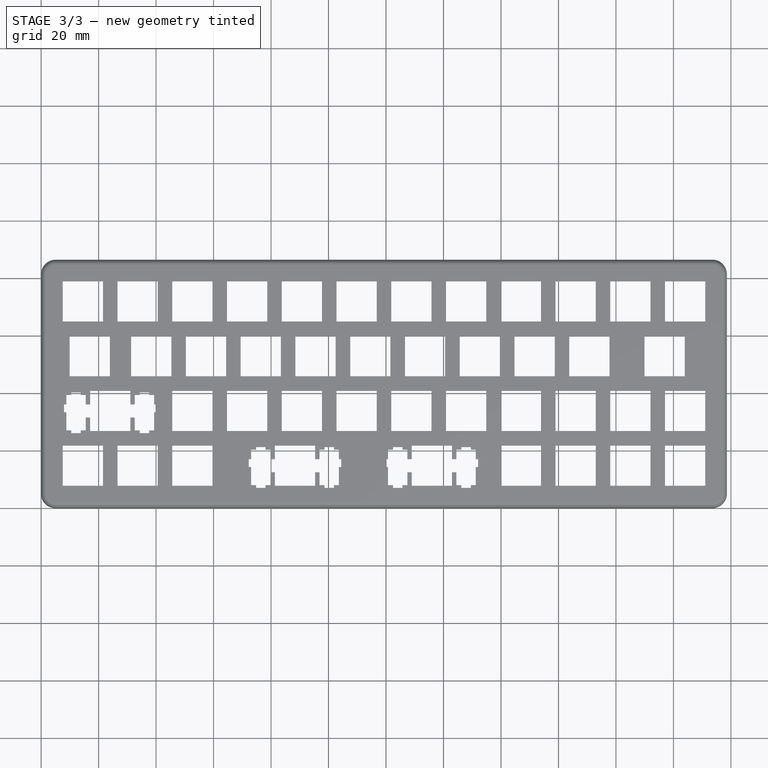
[diagram: stage 3 of 3 — top view after this stage's code; geometry added in this stage tinted green]
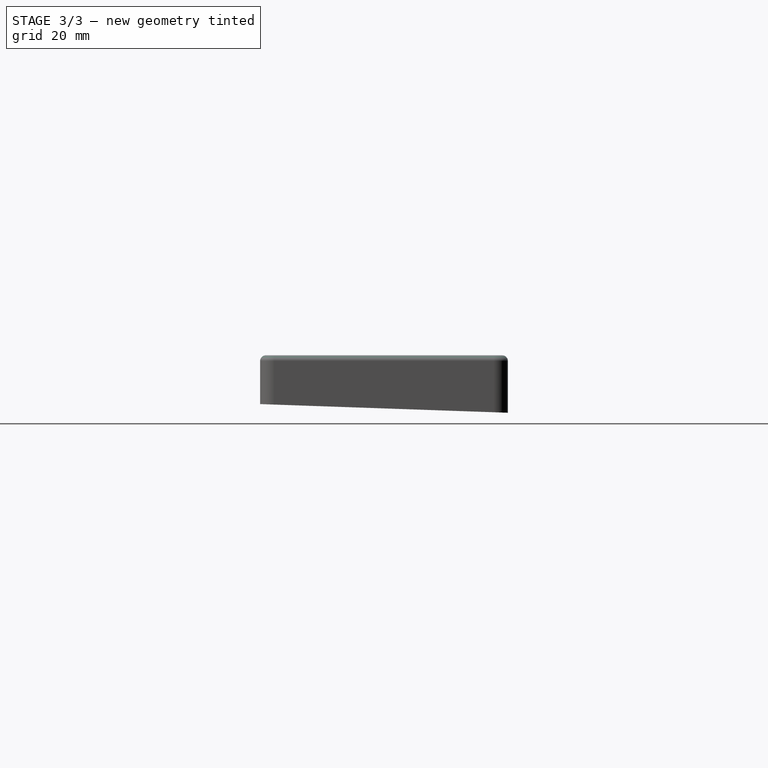
[diagram: stage 3 of 3 — right view after this stage's code; geometry added in this stage tinted green]
FEATURE [PartDesign::Fillet] Fillet001
  Base = -> Fillet [Edge23]
  BaseFeature = -> Fillet
  Placement = pos=(0,0,0) rot=(0,0,1;3.14159rad)
  Radius = 2
  SupportTransform = false
  UseAllEdges = false
FEATURE [PartDesign::Fillet] Fillet002
  Base = -> Fillet001 [Edge31,Edge30,Edge331,Edge351]
  BaseFeature = -> Fillet001
  Placement = pos=(0,0,0) rot=(0,0,1;3.14159rad)
  Radius = 1
  SupportTransform = false
  UseAllEdges = false
FEATURE [PartDesign::Body] Body
  Group = -> [Sketch,Pad,Sketch001,Pocket,Sketch002,Pocket001,Sketch003,Pocket002,Fillet,Fillet001,Fillet002]
  Origin = -> Origin
  Tip = -> Fillet002
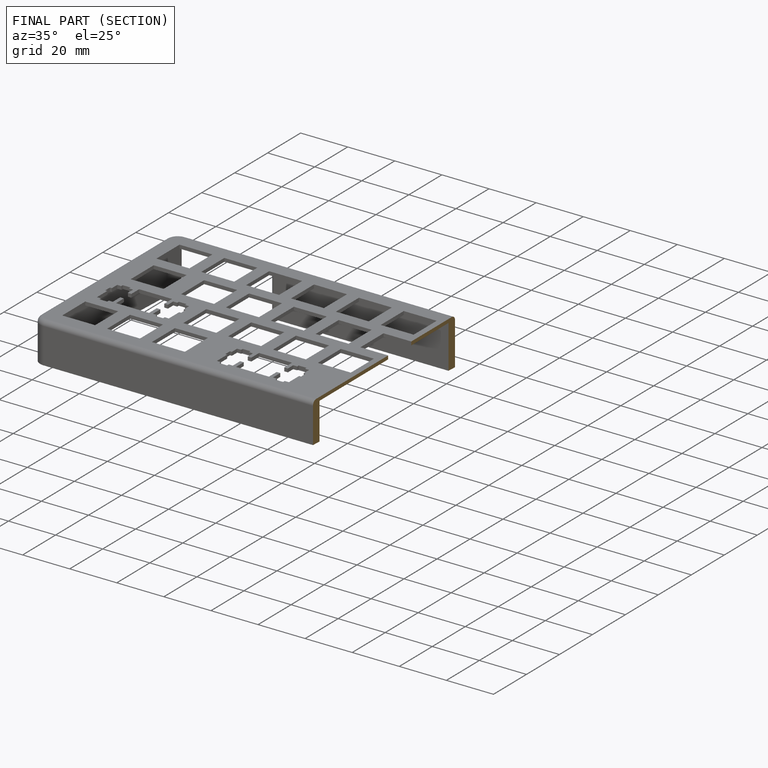
[diagram: finished part — half-section view (interior)]
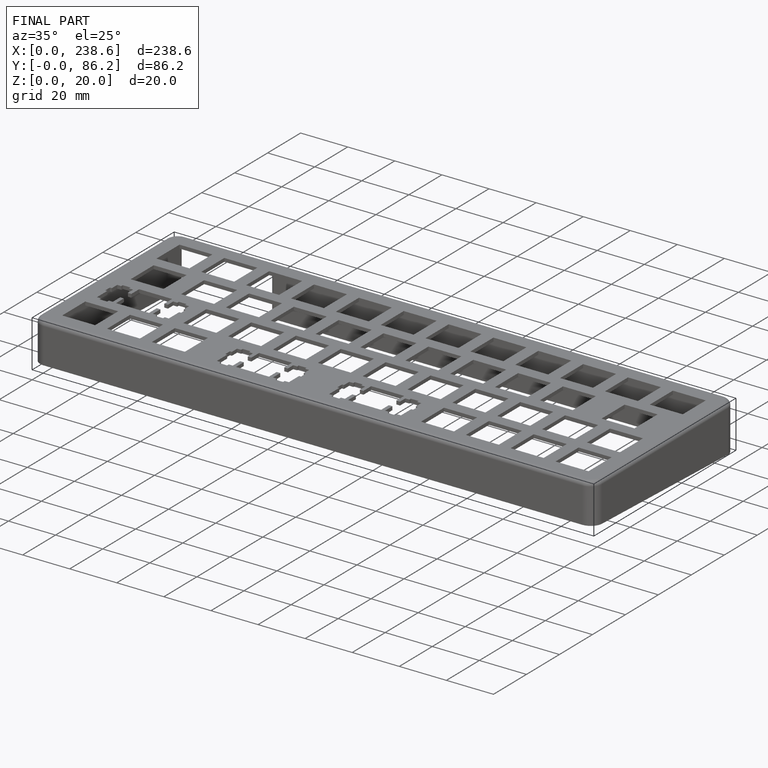
[diagram: finished part — iso view with bounding-box wireframe]
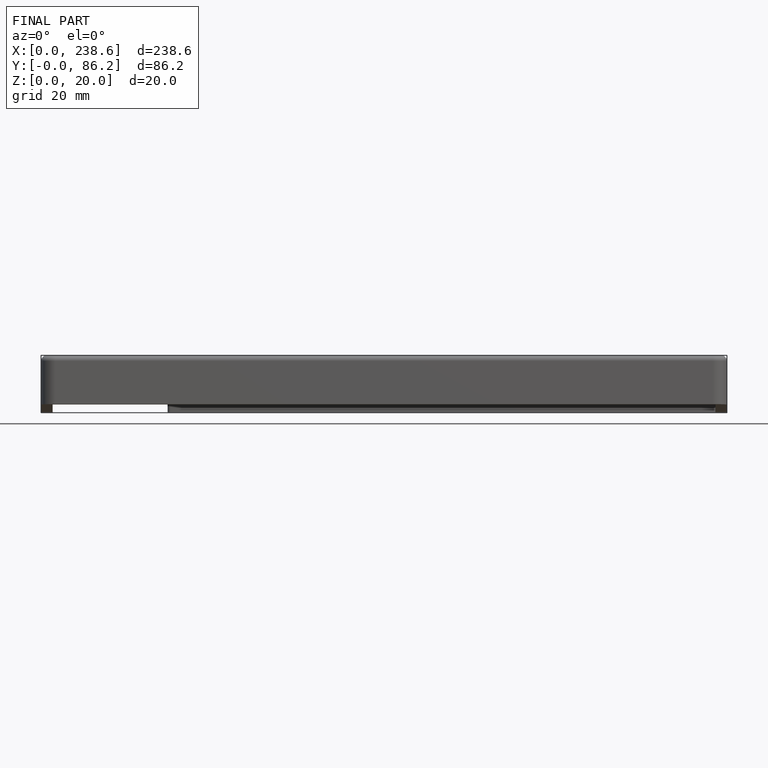
[diagram: finished part — front view with bounding-box wireframe]
